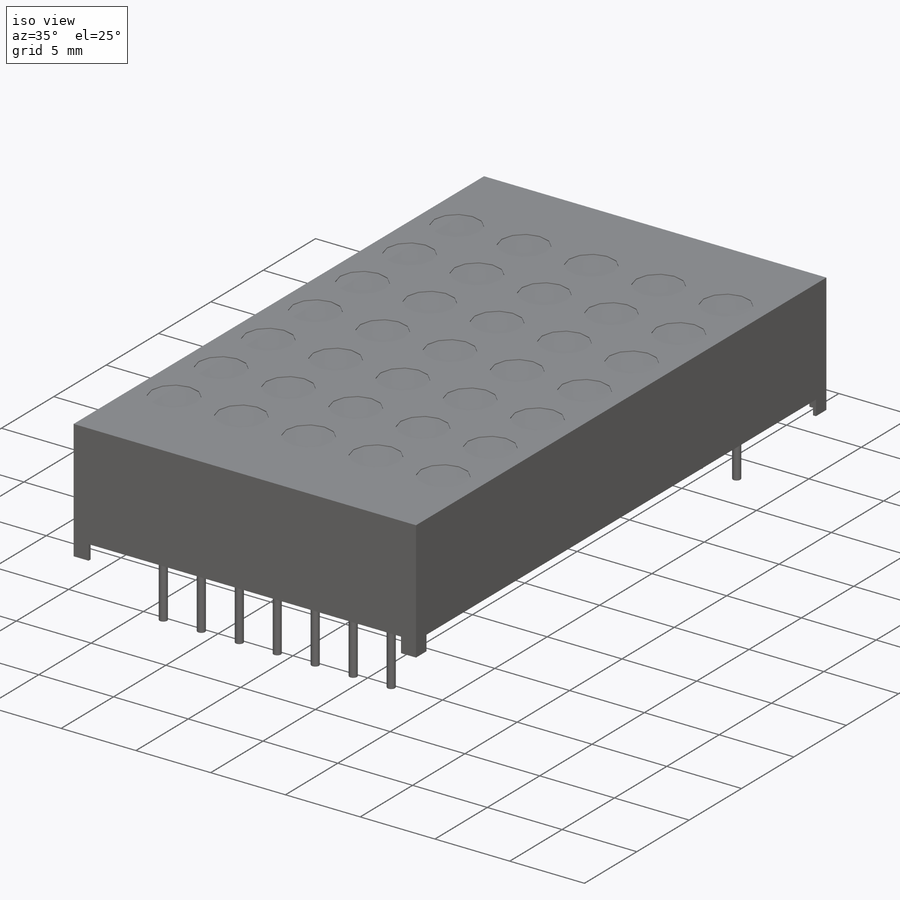
[diagram: iso view]
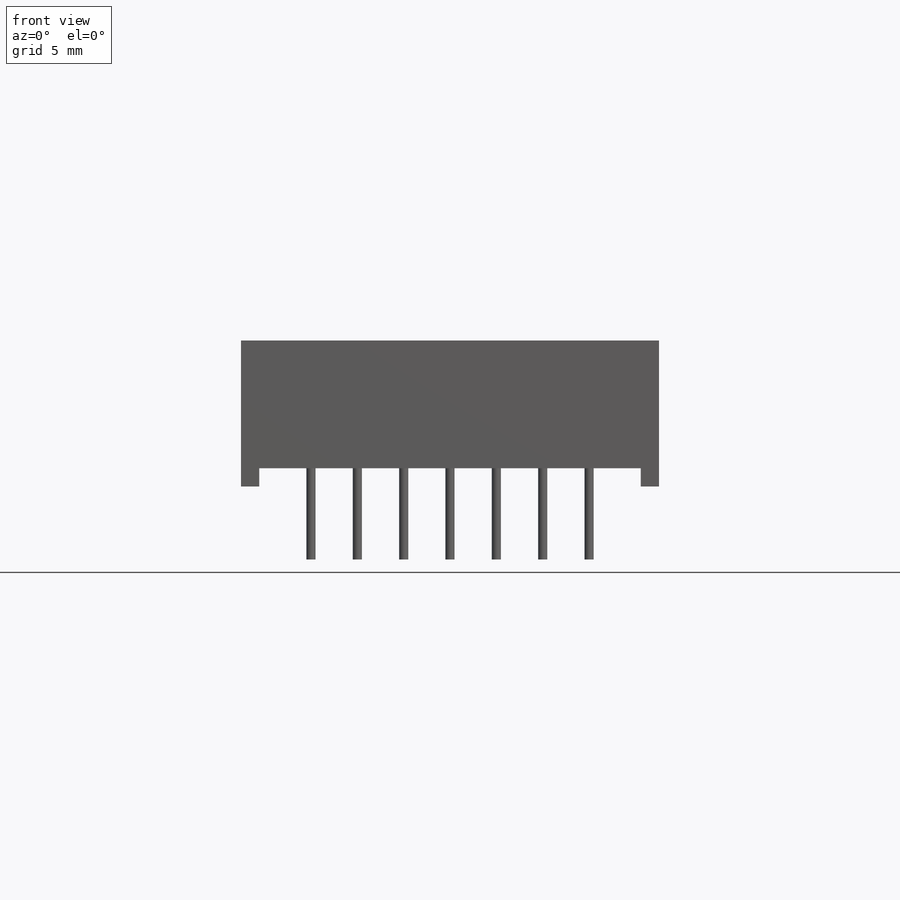
[diagram: front view]
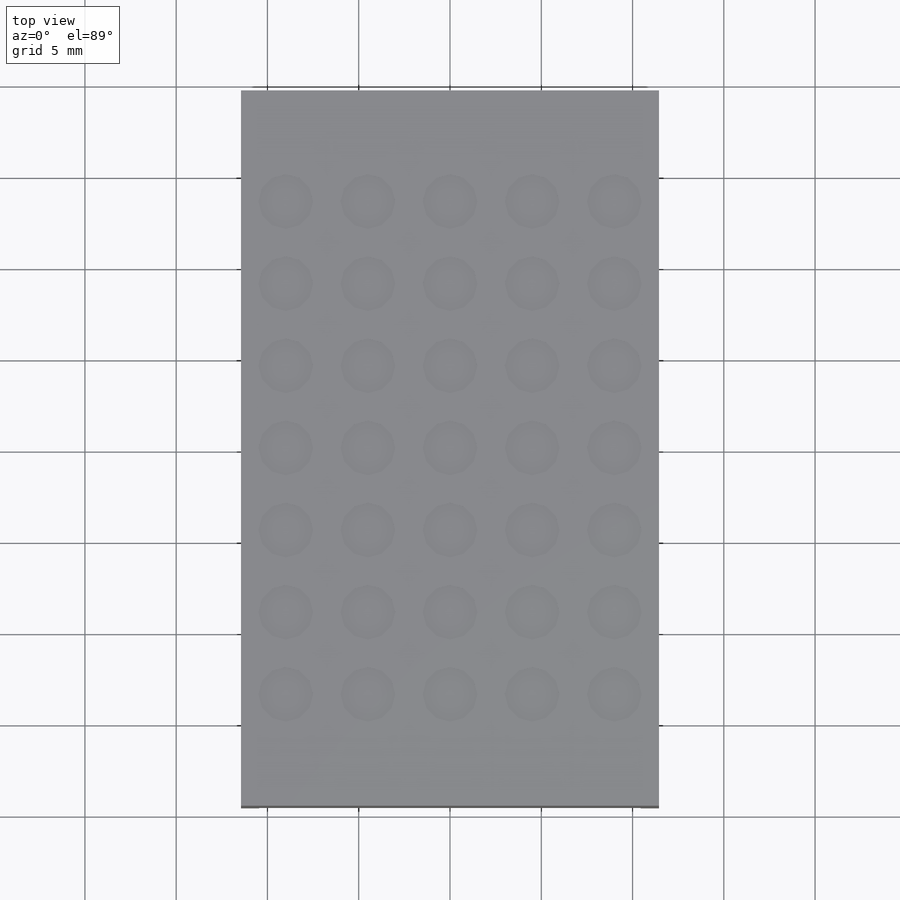
[diagram: top view]
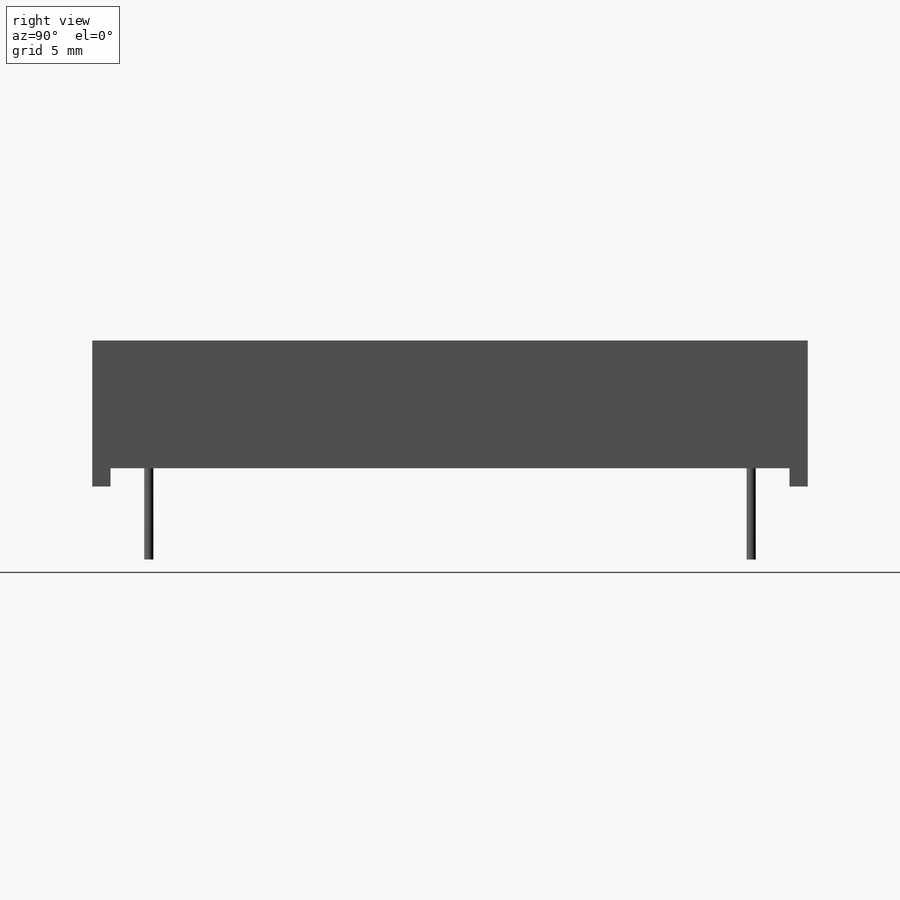
[diagram: right view]
SOLIDWORKS PART (.sldprt)
format: sldprt  version: not decoded by parser v0  size: 914,944 bytes
history: native  units: mm
features: sketch x7, cut_extrude x4, extrude x3, material x1 (+14 scaffold rows collapsed)
feature tree (29):
  scaffold x14  (default folders/planes/origin — collapsed)
  material  "Material <not specified>"
  sketch  "Sketch1"  dims[D1=39.2mm D2=8.0mm D3=1.0mm D4=1.0mm D5=1.0mm]
  extrude  "Extrude1"  Depth=22.9mm
  sketch  "Sketch2"  dims[c1.D1=2.0mm c1.D2=3.0mm c2.D1=4.5mm c2.D3=4.5mm c2.D4=4.5mm c2.D5=4.5mm c2.D6=4.5mm c2.D7=4.5mm c2.D8=4.5mm c2.D9=4.5mm c2.D10=4.5mm c2.D11=4.5mm]
  sketch  "Sketch3"  dims[D1=1.0mm D2=1.0mm D3=1.0mm]
  cut_extrude  "Cut-Extrude1"  [1 undecoded]
  cut_extrude  "Cut-Extrude2"  Depth=0.05mm
  sketch  "Sketch4"  dims[c1.D9=0.5mm c1.D1=2.54mm c1.D2=2.54mm c1.D3=2.54mm c1.D4=0.5mm c1.D5=0.5mm c1.D6=2.54mm c1.D7=2.54mm c1.D8=7.62mm c2.D1=2.54mm c2.D2=2.54mm c2.D3=2.54mm c2.D4=2.54mm c2.D5=2.54mm c2.D6=7.62mm c2.D7=0.2mm c2.D8=0.2mm c3.D1=2.54mm c3.D2=2.54mm c3.D3=2.54mm c3.D4=2.54mm c3.D5=2.54mm c3.D6=2.54mm c3.D10=3.83mm c3.D11=33.0mm]
  extrude  "Extrude2"  [1 undecoded]
  extrude  "Extrude3"  [1 undecoded]
  sketch  "Sketch4<3>"  dims[D1=4.0mm]
  cut_extrude  "Cut-Extrude3"  [1 undecoded]
  sketch  "Sketch4<4>"
  sketch  "Sketch5"
  cut_extrude  "Cut-Extrude4"  Depth=0.01mm
decode coverage: 8 of 14 modeling features carry decoded parameters
note: 4 parameter values undecoded
summary: no parameter record found for 4 features
note: suppression state not decoded; provenance and decode notes live in map.json
